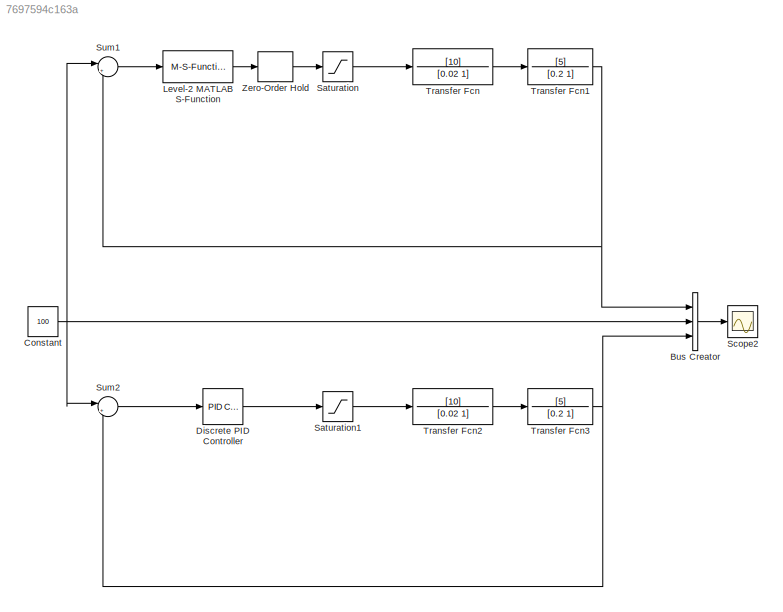
MODEL slx_7697594c163a
KIND model
CONFIG AbsTol = auto
CONFIG EnableMultiTasking = off
CONFIG FixedStep = 0.001
CONFIG MaxStep = auto
CONFIG MinStep = auto
CONFIG RelTol = 1e-3
CONFIG SampleTimeConstraint = Unconstrained
CONFIG Solver = VariableStepAuto
CONFIG SolverName = VariableStepAuto
CONFIG StartTime = 0.0
CONFIG StopTime = 10.0
BLOCK [BusCreator] Bus Creator
  DisplayOption = bar
  InheritFromInputs = on
  Inputs = 3
  Ports = [3, 1]
BLOCK [Constant] Constant
  Value = 100
BLOCK [Reference] Discrete PID Controller  REF=simulink/Continuous/PID Controller
  Ports = [1, 1]
  SourceBlock = simulink/Continuous/PID Controller
  SourceProductBaseCode = SL
  SourceProductName = Simulink
  SourceType = PID 1dof
BLOCK [M-S-Function] Level-2 MATLAB S-Function
  FunctionName = pi_s_function
  Ports = [1, 1]
BLOCK [Saturate] Saturation
  InputPortMap = u0
  LowerLimit = -10
  Ports = [1, 1]
  UpperLimit = 10
BLOCK [Saturate] Saturation1
  InputPortMap = u0
  LowerLimit = -10
  Ports = [1, 1]
  UpperLimit = 10
BLOCK [Scope] Scope2
  Floating = off
  NumInputPorts = 1
  Ports = [1]
  ScopeSpecificationString = Simulink.scopes.TimeScopeBlockCfg('CurrentConfiguration', extmgr.ConfigurationSet(extmgr.Configuration('Core','General UI',true,'FigureColor',[1 1 1]),extmgr.Configuration('Core','Source UI',true),extmgr.Configuration('Sources','WiredSimulink',true,'DataLoggingVariableName','ScopeData1'),extmgr.Configuration('Visuals','Time Domain',true,'SerializedDisplays',{struct('MinYLimReal','-15.25838','MaxYL...<+1522ch>
BLOCK [Sum] Sum1
  IconShape = round
  InputSameDT = off
  Inputs = |+-
  OutDataTypeStr = Inherit: Inherit via internal rule
  Ports = [2, 1]
  SaturateOnIntegerOverflow = off
BLOCK [Sum] Sum2
  IconShape = round
  InputSameDT = off
  Inputs = |+-
  OutDataTypeStr = Inherit: Inherit via internal rule
  Ports = [2, 1]
  SaturateOnIntegerOverflow = off
BLOCK [TransferFcn] Transfer Fcn
  Denominator = [0.02 1]
  Numerator = [10]
BLOCK [TransferFcn] Transfer Fcn1
  Denominator = [0.2 1]
  Numerator = [5]
BLOCK [TransferFcn] Transfer Fcn2
  Denominator = [0.02 1]
  Numerator = [10]
BLOCK [TransferFcn] Transfer Fcn3
  Denominator = [0.2 1]
  Numerator = [5]
BLOCK [ZeroOrderHold] Zero-Order Hold
  SampleTime = -1
LINE Bus Creator:1 -> Scope2:1
NET Constant:1 -> Bus Creator:2, Sum1:1, Sum2:1
LINE Discrete PID Controller:1 -> Saturation1:1
LINE Level-2 MATLAB S-Function:1 -> Zero-Order Hold:1
LINE Saturation1:1 -> Transfer Fcn2:1
LINE Saturation:1 -> Transfer Fcn:1
LINE Sum1:1 -> Level-2 MATLAB S-Function:1
LINE Sum2:1 -> Discrete PID Controller:1
NET Transfer Fcn1:1 -> Bus Creator:1, Sum1:2
LINE Transfer Fcn2:1 -> Transfer Fcn3:1
NET Transfer Fcn3:1 -> Bus Creator:3, Sum2:2
LINE Transfer Fcn:1 -> Transfer Fcn1:1
LINE Zero-Order Hold:1 -> Saturation:1
note: NET lines group one-source signal fan-out (src -> all destinations, sorted); 1:1 wires keep LINE
